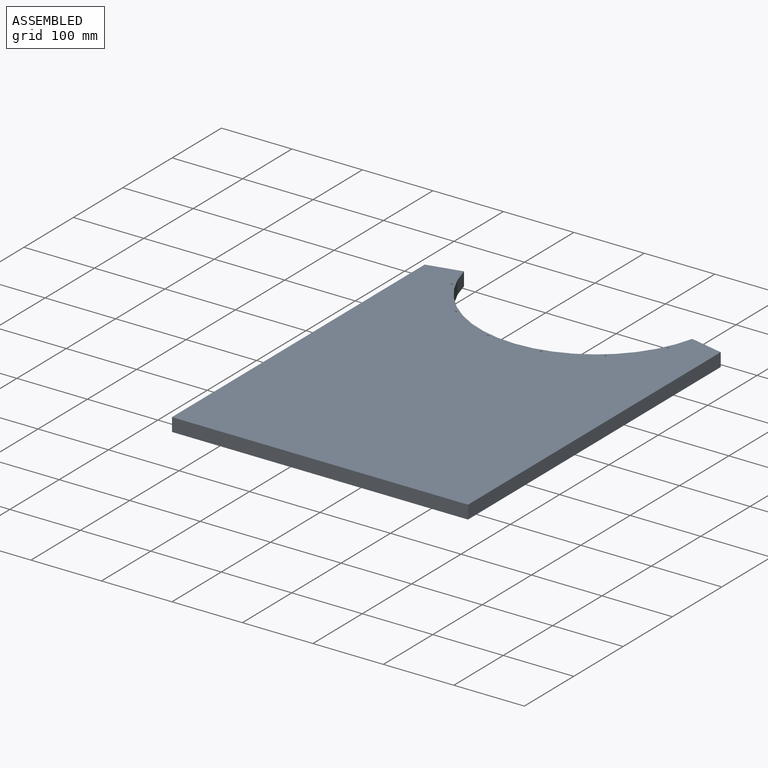
[diagram: assembled view]
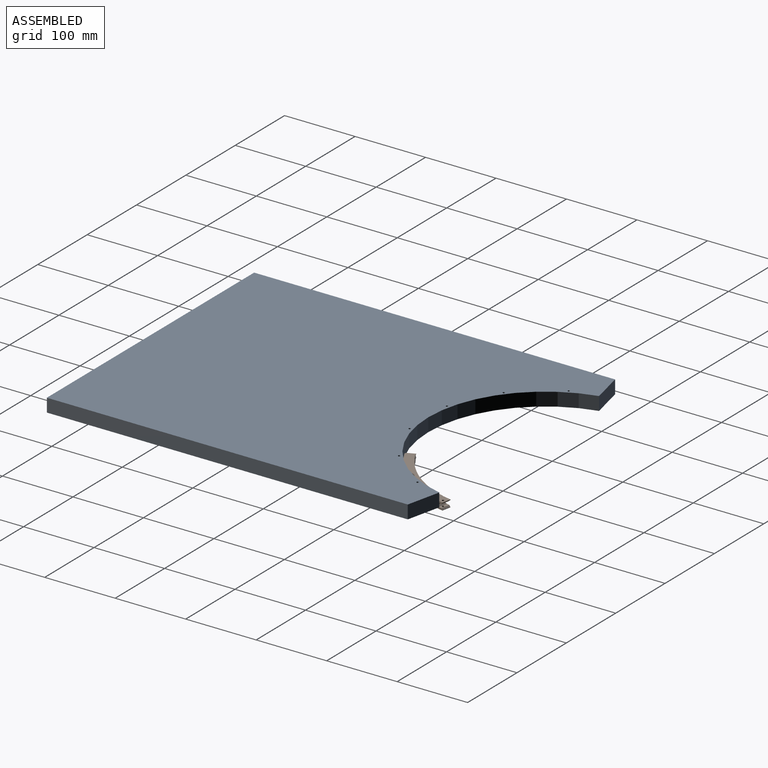
[diagram: assembled view, second angle]
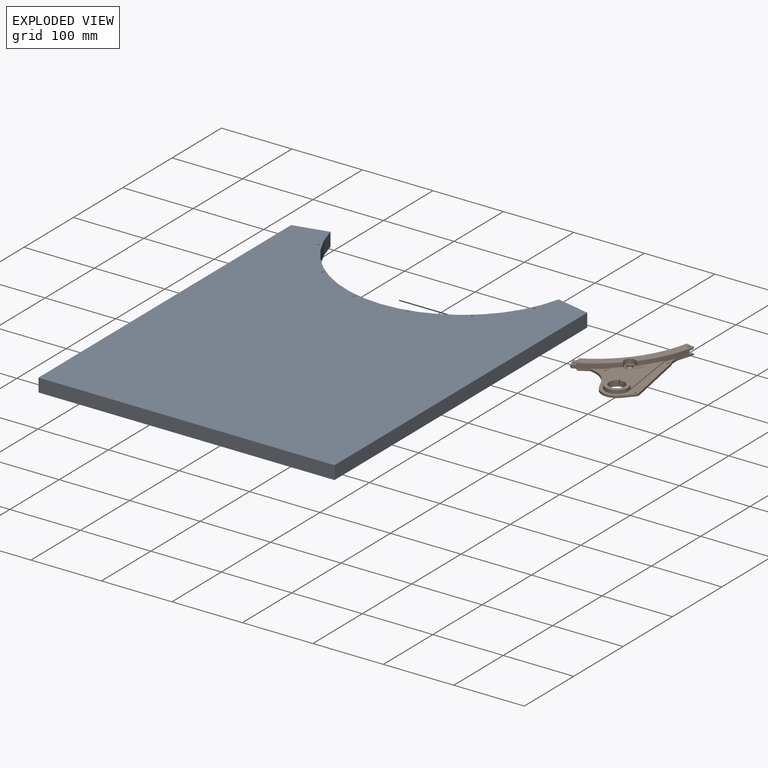
[diagram: exploded view]
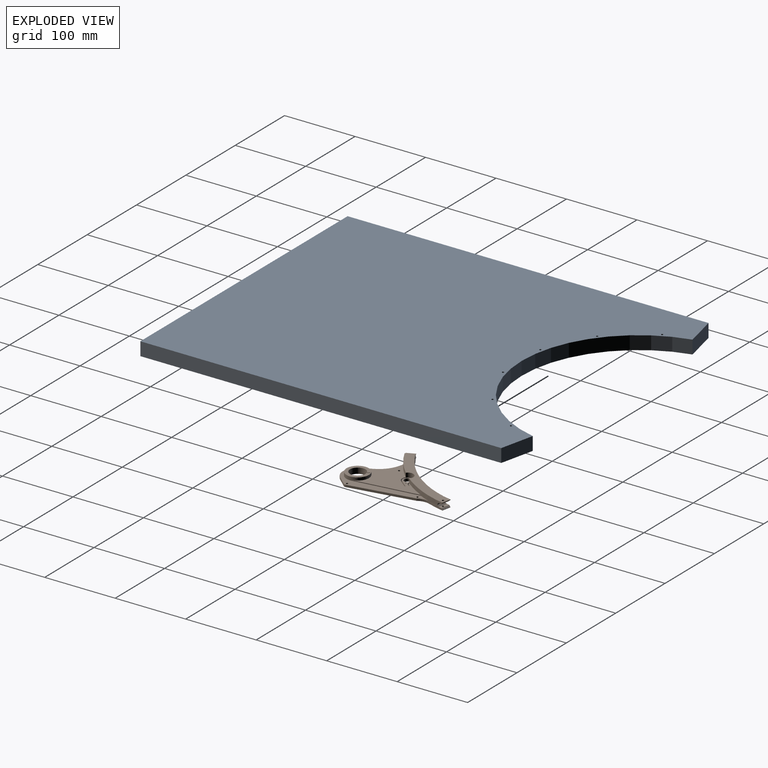
[diagram: exploded view, second angle]
ASSEMBLY  parts=2 mates=2
PART A: 14 faces, bbox 420x19.1x523.1 mm
  f0: plane 420x19.05mm, normal (0,0,-1), area 8001mm2, adj f1,f10,f12,f13
  f1: plane 512.07x19.05mm, normal (1,0,0), area 9754.9mm2, adj f0,f2,f12,f13
  f2: plane 48.16x19.05mm, normal (0.22,0,0.97), area 941.1mm2, adj f1,f3,f12,f13
  f3: cylinder r=166mm len=323.68mm, axis (0,1,0), area 8515.4mm2, adj f2,f4,f12,f13
  f4: plane 48.16x19.05mm, normal (-0.22,0,0.97), area 941.1mm2, adj f3,f10,f12,f13
  f5: cylinder r=1.5mm len=19.05mm, axis (0,1,0), area 179.5mm2, adj f12,f13
  f6: cylinder r=1.5mm len=19.05mm, axis (0,1,0), area 179.5mm2, adj f12,f13
  f7: cylinder r=1.5mm len=19.05mm, axis (0,1,0), area 179.5mm2, adj f12,f13
  f8: cylinder r=1.5mm len=19.05mm, axis (0,1,0), area 179.5mm2, adj f12,f13
  f9: cylinder r=1.5mm len=19.05mm, axis (0,1,0), area 179.5mm2, adj f12,f13
  f10: plane 512.07x19.05mm, normal (-1,0,0), area 9754.9mm2, adj f0,f4,f12,f13
  f11: cylinder r=1.5mm len=19.05mm, axis (0,1,0), area 179.5mm2, adj f12,f13
  f12: plane 523.06x420mm, normal (0,-1,0), area 187990.7mm2, adj f0,f1,f2,f3,f4,f5,f6,f7
  f13: plane 523.06x420mm, normal (0,1,0), area 187990.7mm2, adj f0,f1,f2,f3,f4,f5,f6,f7
PART B: 64 faces, bbox 10x102.4x150.8 mm
  f0: cylinder r=4mm len=3mm, axis (-1,0,0), area 3.8mm2, adj f4,f7,f8,f51
  f1: cylinder r=4.46mm len=4.52mm, axis (1,0,0), area 26.3mm2, adj f2,f4,f37,f50
  f2: cylinder r=7mm len=13.99mm, axis (1,0,0), area 127.4mm2, adj f1,f4,f46,f50
  f3: cylinder r=5mm len=10mm, axis (1,0,0), area 123.7mm2, adj f4,f47,f49,f50
  f4: plane 142.95x102.42mm, normal (1,0,0), area 6219.4mm2, adj f0,f1,f2,f3,f5,f8,f9,f10
  f5: cylinder r=165mm len=74.66mm, axis (-1,0,0), area 535mm2, adj f4,f6,f7,f8,f14,f15,f19,f24
  f6: plane 142.95x29.7mm, normal (-1,0,0), area 1718.4mm2, adj f5,f10,f11,f15,f16,f17,f40,f43
  f7: plane 113.22x81.63mm, normal (-1,0,0), area 1803mm2, adj f0,f5,f8,f9,f10,f36,f41,f42
  f8: cylinder r=20mm len=11.96mm, axis (-1,0,0), area 50.6mm2, adj f0,f4,f5,f7
  f9: cylinder r=1.5mm len=3mm, axis (-1,0,0), area 28.3mm2, adj f4,f7
  f10: cylinder r=165mm len=59.56mm, axis (-1,0,0), area 449.3mm2, adj f4,f6,f7,f13,f17,f18,f22,f23
  f11: cylinder r=152.1mm len=133.6mm, axis (-1,0,0), area 348.6mm2, adj f6,f15,f17,f25,f27,f28,f29,f32
  f12: cylinder r=152.1mm len=133.6mm, axis (-1,0,0), area 348.6mm2, adj f4,f18,f19,f24,f26,f30,f31,f34
  f13: plane 10.1x5.2mm, normal (0,-0.46,0.89), area 11.7mm2, adj f10,f26,f27,f33,f35
  f14: plane 10.32x4.64mm, normal (0,-0.41,-0.91), area 12mm2, adj f5,f26,f27,f29,f30
  f15: plane 11.47x5.9mm, normal (0,-0.46,-0.89), area 5.9mm2, adj f5,f6,f11,f28
  f16: cylinder r=1.5mm len=3mm, axis (-1,0,0), area 22.6mm2, adj f6,f25
  f17: plane 11.77x5.29mm, normal (0,-0.41,0.91), area 7mm2, adj f6,f10,f11,f32
  f18: plane 11.77x5.29mm, normal (0,-0.41,0.91), area 7mm2, adj f4,f10,f12,f34
  f19: plane 11.47x5.9mm, normal (0,-0.46,-0.89), area 5.9mm2, adj f4,f5,f12,f31
  f20: cylinder r=1.5mm len=3mm, axis (-1,0,0), area 22.6mm2, adj f4,f24
  f21: cylinder r=1.5mm len=4.8mm, axis (-1,0,0), area 45.2mm2, adj f22,f23
  f22: plane 13.47x9.49mm, normal (1,0,0), area 48.8mm2, adj f10,f21,f26,f34,f35
  f23: plane 13.54x9.62mm, normal (-1,0,0), area 50.6mm2, adj f10,f21,f27,f32,f33
  f24: plane 13.5x9.51mm, normal (-1,0,0), area 48.9mm2, adj f5,f12,f20,f30,f31
  f25: plane 13.5x9.51mm, normal (1,0,0), area 48.9mm2, adj f5,f11,f16,f28,f29
  f26: cone r=154.14mm half-angle=40deg, axis (-1,0,0), area 436.2mm2, adj f12,f13,f14,f22,f27,f30,f34,f35
  f27: cone r=152.1mm half-angle=40deg, axis (1,0,0), area 436.5mm2, adj f11,f13,f14,f23,f26,f29,f32,f33
  f28: plane 12.35x7.63mm, normal (0.71,-0.32,-0.63), area 35.4mm2, adj f5,f11,f15,f25
  f29: plane 12.63x6.52mm, normal (0.71,-0.29,-0.64), area 35.4mm2, adj f5,f11,f14,f25,f27
  f30: plane 12.63x6.52mm, normal (-0.71,-0.29,-0.64), area 35.4mm2, adj f5,f12,f14,f24,f26
  f31: plane 12.35x7.63mm, normal (-0.71,-0.32,-0.63), area 35.4mm2, adj f5,f12,f19,f24
  f32: plane 12.61x7.16mm, normal (-0.71,-0.29,0.64), area 37.6mm2, adj f10,f11,f17,f23,f27
  f33: plane 11.45x7.5mm, normal (-0.71,-0.32,0.63), area 30.8mm2, adj f10,f13,f23,f27
  f34: plane 12.61x7.16mm, normal (0.71,-0.29,0.64), area 37.6mm2, adj f10,f12,f18,f22,f26
  f35: plane 11.45x7.63mm, normal (0.71,-0.32,0.63), area 33.1mm2, adj f10,f13,f22,f26
  f36: cylinder r=1.5mm len=3mm, axis (-1,0,0), area 28.3mm2, adj f4,f7
  f37: cylinder r=167.5mm len=4mm, axis (1,0,0), area 12.1mm2, adj f1,f4,f38,f50
  f38: cylinder r=0.5mm len=4mm, axis (1,0,0), area 6.3mm2, adj f4,f37,f39,f50
  f39: cylinder r=166.5mm len=4mm, axis (1,0,0), area 12mm2, adj f4,f38,f40,f50
  f40: cylinder r=3.46mm len=10mm, axis (1,0,0), area 30.8mm2, adj f4,f5,f6,f39,f43,f50
  f41: plane 65.58x62.4mm, normal (0,0.69,-0.72), area 90.5mm2, adj f5,f7,f50,f62
  f42: plane 46.6x22.61mm, normal (0,-0.44,0.9), area 51.8mm2, adj f7,f10,f50,f62
  f43: cylinder r=8mm len=15.99mm, axis (1,0,0), area 290.5mm2, adj f4,f6,f10,f40,f44,f50
  f44: cylinder r=172.5mm len=15.09mm, axis (1,0,0), area 60.4mm2, adj f4,f43,f45,f50
  f45: cylinder r=0.5mm len=4mm, axis (1,0,0), area 6.3mm2, adj f4,f44,f46,f50
  f46: cylinder r=171.5mm len=15mm, axis (1,0,0), area 60mm2, adj f2,f4,f45,f50
  f47: plane 4.34x4mm, normal (0,-0.87,-0.5), area 20mm2, adj f3,f4,f48,f50
  f48: plane 4x0.43mm, normal (0,-0.5,0.87), area 2mm2, adj f4,f47,f49,f50
  f49: plane 4.34x4mm, normal (0,0.87,0.5), area 20mm2, adj f3,f4,f48,f50
  f50: plane 88.39x69.45mm, normal (-1,0,0), area 2277.9mm2, adj f1,f2,f3,f5,f10,f37,f38,f39
  f51: plane 67.98x58.98mm, normal (0,0.66,-0.76), area 270mm2, adj f0,f4,f7,f52
  f52: cylinder r=4mm len=3.24mm, axis (1,0,0), area 10.9mm2, adj f4,f7,f51,f53
  f53: plane 18.52x3mm, normal (0,1,0.05), area 55.6mm2, adj f4,f7,f52,f54
  f54: cylinder r=21mm len=30.13mm, axis (1,0,0), area 124mm2, adj f4,f7,f53,f55
  f55: plane 13.68x6.64mm, normal (0,-0.44,0.9), area 45.6mm2, adj f4,f7,f54,f56
  f56: cylinder r=37.18mm len=36.8mm, axis (1,0,0), area 115.8mm2, adj f4,f7,f10,f55
  f57: cylinder r=1.5mm len=3mm, axis (1,0,0), area 28.3mm2, adj f4,f7
  f58: cylinder r=11mm len=22mm, axis (1,0,0), area 544.9mm2, adj f4,f59,f61,f63
  f59: plane 8x3.44mm, normal (0,-0.52,0.86), area 32.1mm2, adj f4,f58,f60,f63
  f60: plane 8x0.86mm, normal (0,0.86,0.52), area 8mm2, adj f4,f59,f61,f63
  f61: plane 8x3.44mm, normal (0,0.52,-0.86), area 32.1mm2, adj f4,f58,f60,f63
  f62: cylinder r=16mm len=32mm, axis (1,0,0), area 447.4mm2, adj f7,f41,f42,f50,f63
  f63: plane 32x32mm, normal (-1,0,0), area 420.1mm2, adj f58,f59,f60,f61,f62
PLACE A rot(axis=(-1,0,0),90deg) t=(-158.75,560,-9.52)mm
PLACE B rot(axis=(0.67,0.32,-0.67),144.3deg) t=(0,560,-17.05)mm
MATE cylindrical B.f0 <-> A.f11  axis (0,0,-1) through (153.16,486.24,-22.05)mm
MATE revolute A.f3 <-> B.f26  axis (0,0,-1) through (0,560,-19.05)mm
